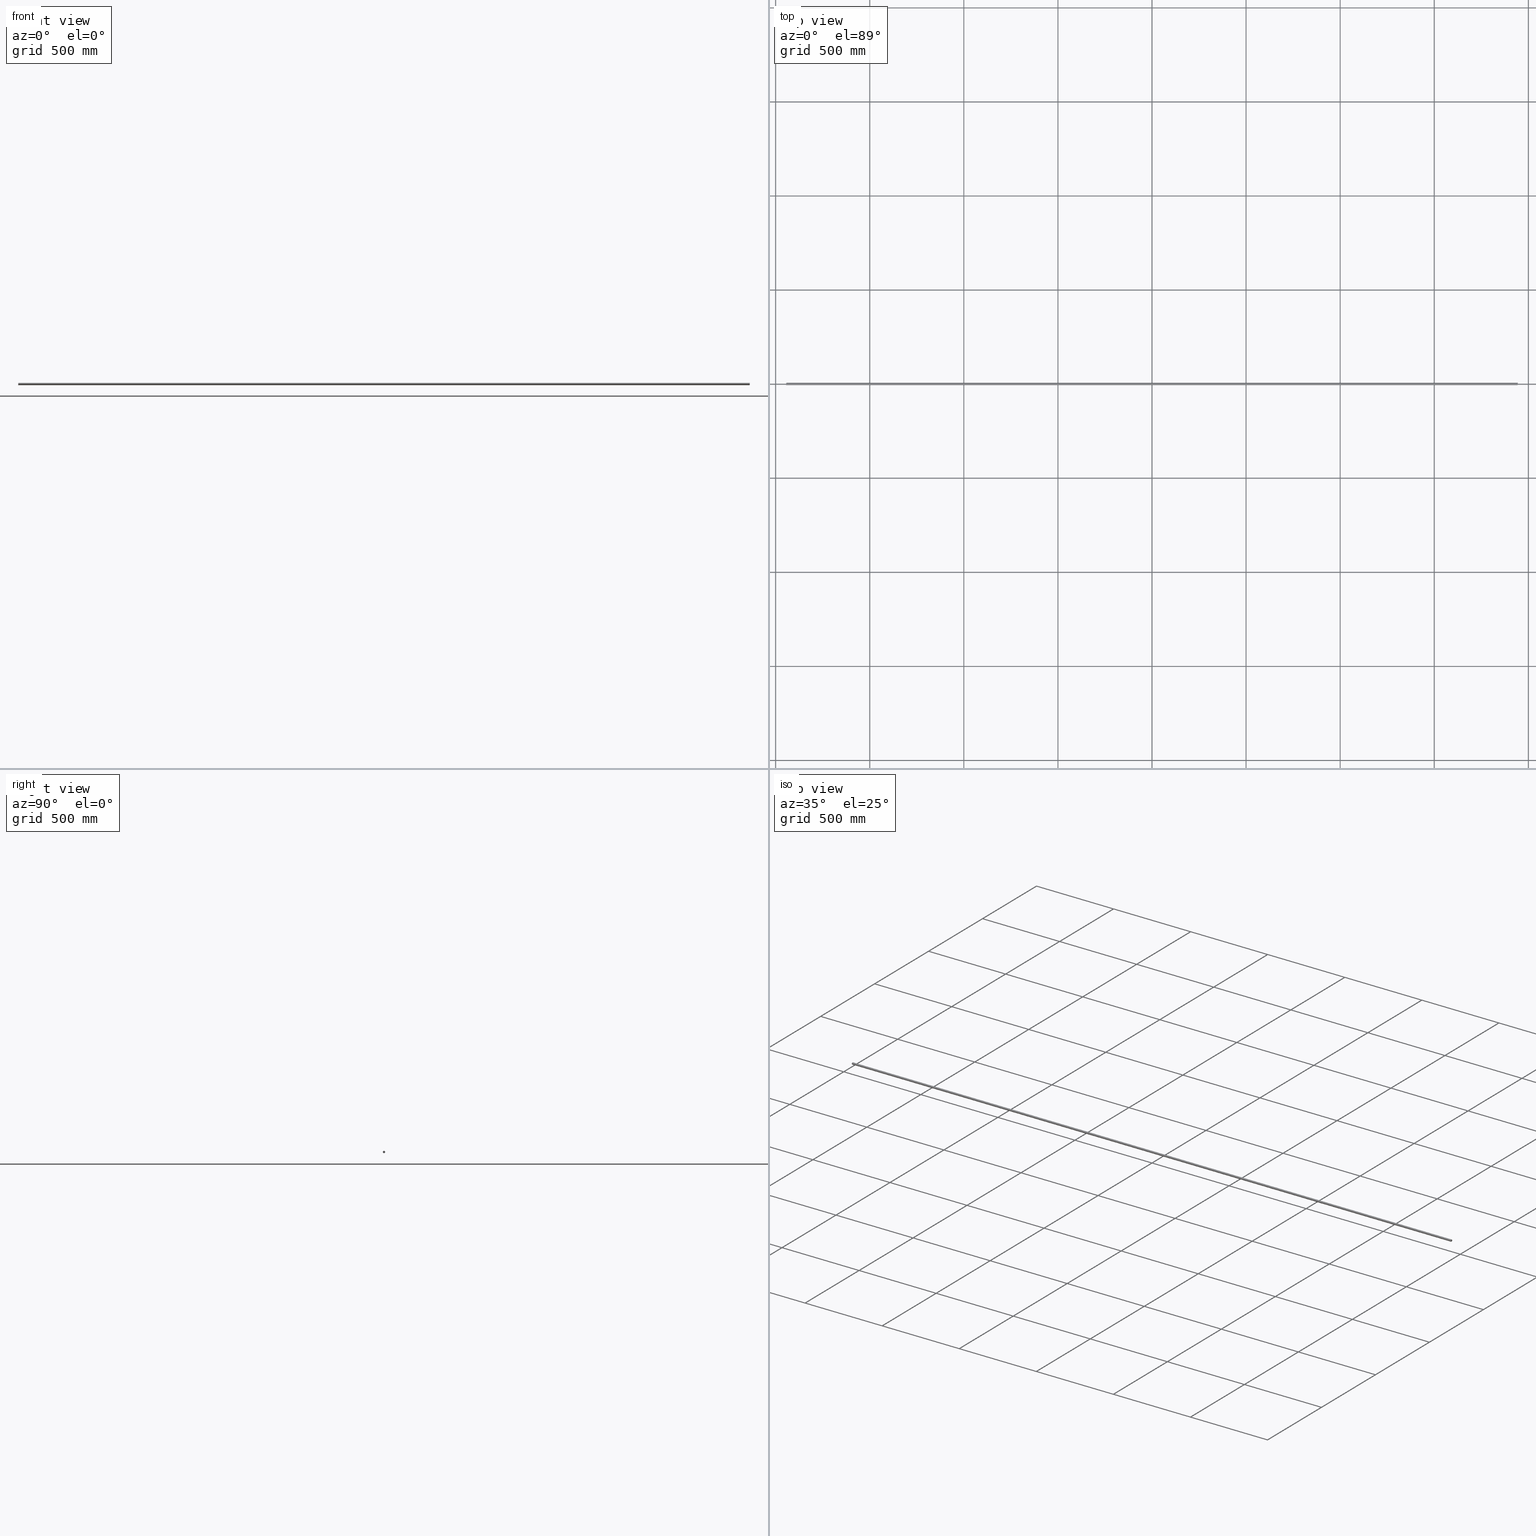
[diagram: canonical four-view strip — front | top / right | iso, engineering-drawing reading convention]
A machine part, canonical four-view strip (front | top / right | iso — engineering-drawing reading convention). The complete STEP part file that produces these views, byte-faithful:
ISO-10303-21;
HEADER;
FILE_DESCRIPTION (( 'STEP AP203' ),
    '1' );
FILE_NAME ('3982-38-10_REV_.step',
    '2026-02-01T20:36:12',
    ( '' ),
    ( '' ),
    'SwSTEP 2.0',
    'SolidWorks 2025',
    '' );
FILE_SCHEMA (( 'CONFIG_CONTROL_DESIGN' ));
ENDSEC;

DATA;
#1 = COORDINATED_UNIVERSAL_TIME_OFFSET ( 10, 0, .AHEAD. ) ;
#2 = AXIS2_PLACEMENT_3D ( 'NONE', #170, #78, #89 ) ;
#3 = DIRECTION ( 'NONE',  ( -1.000000000000000000, -1.836970198721029934E-16, -0.000000000000000000 ) ) ;
#4 = PRODUCT_RELATED_PRODUCT_CATEGORY ( 'detail', '', ( #13 ) ) ;
#5 = CARTESIAN_POINT ( 'NONE',  ( 1943.500000000000000, -5.999999999999286793, 0.000000000000000000 ) ) ;
#6 = CC_DESIGN_PERSON_AND_ORGANIZATION_ASSIGNMENT ( #175, #26, ( #154 ) ) ;
#7 = PLANE ( 'NONE',  #2 ) ;
#8 = DIRECTION ( 'NONE',  ( 0.000000000000000000, 1.000000000000000000, 0.000000000000000000 ) ) ;
#9 = CARTESIAN_POINT ( 'NONE',  ( 1943.500000000000000, 7.140303162428642532E-13, 0.000000000000000000 ) ) ;
#10 =( LENGTH_UNIT ( ) NAMED_UNIT ( * ) SI_UNIT ( .MILLI., .METRE. ) );
#11 = PRODUCT_DEFINITION_SHAPE ( 'NONE', 'NONE',  #154 ) ;
#12 = CIRCLE ( 'NONE', #112, 6.000000000000000888 ) ;
#13 = PRODUCT ( '3982-38-10_REV_', '3982-38-10_REV_', '', ( #171 ) ) ;
#14 = DESIGN_CONTEXT ( 'detailed design', #98, 'design' ) ;
#15 = EDGE_CURVE ( 'NONE', #44, #137, #128, .T. ) ;
#16 = ORIENTED_EDGE ( 'NONE', *, *, #122, .T. ) ;
#17 = EDGE_LOOP ( 'NONE', ( #152, #18, #163, #75 ) ) ;
#18 = ORIENTED_EDGE ( 'NONE', *, *, #100, .T. ) ;
#19 = DIRECTION ( 'NONE',  ( 1.000000000000000000, 1.836970198721029934E-16, 0.000000000000000000 ) ) ;
#20 = CARTESIAN_POINT ( 'NONE',  ( -1943.500000000000000, 0.000000000000000000, 0.000000000000000000 ) ) ;
#21 = APPROVAL_STATUS ( 'not_yet_approved' ) ;
#22 = ORGANIZATION ( 'UNSPECIFIED', 'UNSPECIFIED', '' ) ;
#23 = SECURITY_CLASSIFICATION_LEVEL ( 'unclassified' ) ;
#24 = APPROVAL_DATE_TIME ( #27, #45 ) ;
#25 = CC_DESIGN_APPROVAL ( #45, ( #88 ) ) ;
#26 = PERSON_AND_ORGANIZATION_ROLE ( 'creator' ) ;
#27 = DATE_AND_TIME ( #148, #141 ) ;
#28 = CC_DESIGN_PERSON_AND_ORGANIZATION_ASSIGNMENT ( #41, #81, ( #94 ) ) ;
#29 = ORIENTED_EDGE ( 'NONE', *, *, #127, .T. ) ;
#30 = EDGE_LOOP ( 'NONE', ( #126, #58 ) ) ;
#31 = EDGE_LOOP ( 'NONE', ( #16, #29 ) ) ;
#32 = ADVANCED_FACE ( 'NONE', ( #101 ), #73, .T. ) ;
#33 = CIRCLE ( 'NONE', #134, 6.000000000000000888 ) ;
#34 = EDGE_CURVE ( 'NONE', #137, #138, #165, .T. ) ;
#35 = LOCAL_TIME ( 7, 36, 12.00000000000000000, #1 ) ;
#36 = PERSON_AND_ORGANIZATION ( #46, #22 ) ;
#37 = DIRECTION ( 'NONE',  ( -1.000000000000000000, -1.836970198721029934E-16, -0.000000000000000000 ) ) ;
#38 = ADVANCED_FACE ( 'NONE', ( #119 ), #106, .T. ) ;
#39 = DIRECTION ( 'NONE',  ( -1.836970198721029934E-16, 1.000000000000000000, 0.000000000000000000 ) ) ;
#40 = CALENDAR_DATE ( 2026, 2, 2 ) ;
#41 = PERSON_AND_ORGANIZATION ( #46, #22 ) ;
#42 = CC_DESIGN_PERSON_AND_ORGANIZATION_ASSIGNMENT ( #159, #160, ( #88 ) ) ;
#43 = CC_DESIGN_APPROVAL ( #96, ( #94 ) ) ;
#44 = VERTEX_POINT ( 'NONE', #156 ) ;
#45 = APPROVAL ( #147, 'UNSPECIFIED' ) ;
#46 = PERSON ( 'UNSPECIFIED', 'UNSPECIFIED', 'UNSPECIFIED', ('UNSPECIFIED'), ('UNSPECIFIED'), ('UNSPECIFIED') ) ;
#47 = AXIS2_PLACEMENT_3D ( 'NONE', #132, #37, #129 ) ;
#48 = DIRECTION ( 'NONE',  ( 0.000000000000000000, 1.000000000000000000, 0.000000000000000000 ) ) ;
#49 = CC_DESIGN_PERSON_AND_ORGANIZATION_ASSIGNMENT ( #109, #107, ( #88 ) ) ;
#50 = CARTESIAN_POINT ( 'NONE',  ( 1943.500000000000000, 6.000000000000714984, 7.347880794884120722E-16 ) ) ;
#51 = CARTESIAN_POINT ( 'NONE',  ( -1943.500000000000000, -6.000000000000001776, 0.000000000000000000 ) ) ;
#52 = DATE_AND_TIME ( #56, #86 ) ;
#53 = COORDINATED_UNIVERSAL_TIME_OFFSET ( 10, 0, .AHEAD. ) ;
#54 = CC_DESIGN_PERSON_AND_ORGANIZATION_ASSIGNMENT ( #36, #91, ( #13 ) ) ;
#55 = PERSON_AND_ORGANIZATION ( #46, #22 ) ;
#56 = CALENDAR_DATE ( 2026, 2, 2 ) ;
#57 = AXIS2_PLACEMENT_3D ( 'NONE', #20, #105, #39 ) ;
#58 = ORIENTED_EDGE ( 'NONE', *, *, #140, .F. ) ;
#59 = ORIENTED_EDGE ( 'NONE', *, *, #100, .F. ) ;
#60 = DIRECTION ( 'NONE',  ( -1.000000000000000000, -1.836970198721029934E-16, -0.000000000000000000 ) ) ;
#61 =( GEOMETRIC_REPRESENTATION_CONTEXT ( 3 ) GLOBAL_UNCERTAINTY_ASSIGNED_CONTEXT ( ( #164 ) ) GLOBAL_UNIT_ASSIGNED_CONTEXT ( ( #10, #155, #139 ) ) REPRESENTATION_CONTEXT ( 'NONE', 'WORKASPACE' ) );
#62 = CARTESIAN_POINT ( 'NONE',  ( -1943.500000000000000, 6.000000000000000888, 7.347880794884120722E-16 ) ) ;
#63 = LINE ( 'NONE', #50, #146 ) ;
#64 = DIRECTION ( 'NONE',  ( 0.000000000000000000, 0.000000000000000000, 1.000000000000000000 ) ) ;
#65 = CC_DESIGN_DATE_AND_TIME_ASSIGNMENT ( #82, #133, ( #94 ) ) ;
#66 = LOCAL_TIME ( 7, 36, 12.00000000000000000, #83 ) ;
#67 = APPROVAL_ROLE ( '' ) ;
#68 = COORDINATED_UNIVERSAL_TIME_OFFSET ( 10, 0, .AHEAD. ) ;
#69 = CC_DESIGN_SECURITY_CLASSIFICATION ( #94, ( #88 ) ) ;
#70 = ADVANCED_BREP_SHAPE_REPRESENTATION ( '3982-38-10_REV_', ( #102, #72 ), #61 ) ;
#71 = CALENDAR_DATE ( 2026, 2, 2 ) ;
#72 = AXIS2_PLACEMENT_3D ( 'NONE', #92, #64, #142 ) ;
#73 = CYLINDRICAL_SURFACE ( 'NONE', #118, 6.000000000000000888 ) ;
#74 = APPROVAL ( #21, 'UNSPECIFIED' ) ;
#75 = ORIENTED_EDGE ( 'NONE', *, *, #15, .F. ) ;
#76 = CARTESIAN_POINT ( 'NONE',  ( -1943.500000000000000, 0.000000000000000000, 0.000000000000000000 ) ) ;
#77 = APPLICATION_PROTOCOL_DEFINITION ( 'international standard', 'config_control_design', 1994, #80 ) ;
#78 = DIRECTION ( 'NONE',  ( 1.000000000000000000, 1.836970198721029934E-16, 0.000000000000000000 ) ) ;
#79 = CARTESIAN_POINT ( 'NONE',  ( 1943.500000000000000, 7.140303162428642532E-13, 0.000000000000000000 ) ) ;
#80 = APPLICATION_CONTEXT ( 'configuration controlled 3d designs of mechanical parts and assemblies' ) ;
#81 = PERSON_AND_ORGANIZATION_ROLE ( 'classification_officer' ) ;
#82 = DATE_AND_TIME ( #40, #66 ) ;
#83 = COORDINATED_UNIVERSAL_TIME_OFFSET ( 10, 0, .AHEAD. ) ;
#84 = AXIS2_PLACEMENT_3D ( 'NONE', #9, #19, #104 ) ;
#85 = DATE_TIME_ROLE ( 'creation_date' ) ;
#86 = LOCAL_TIME ( 7, 36, 12.00000000000000000, #68 ) ;
#87 = FACE_OUTER_BOUND ( 'NONE', #30, .T. ) ;
#88 = PRODUCT_DEFINITION_FORMATION_WITH_SPECIFIED_SOURCE ( 'ANY', '', #13, .NOT_KNOWN. ) ;
#89 = DIRECTION ( 'NONE',  ( -1.836970198721029934E-16, 1.000000000000000000, 0.000000000000000000 ) ) ;
#90 = ADVANCED_FACE ( 'NONE', ( #114 ), #7, .T. ) ;
#91 = PERSON_AND_ORGANIZATION_ROLE ( 'design_owner' ) ;
#92 = CARTESIAN_POINT ( 'NONE',  ( 0.000000000000000000, 0.000000000000000000, 0.000000000000000000 ) ) ;
#93 = CIRCLE ( 'NONE', #84, 6.000000000000000888 ) ;
#94 = SECURITY_CLASSIFICATION ( '', '', #23 ) ;
#95 = SHAPE_DEFINITION_REPRESENTATION ( #11, #70 ) ;
#96 = APPROVAL ( #135, 'UNSPECIFIED' ) ;
#97 = VECTOR ( 'NONE', #168, 1000.000000000000000 ) ;
#98 = APPLICATION_CONTEXT ( 'configuration controlled 3d designs of mechanical parts and assemblies' ) ;
#99 = ORIENTED_EDGE ( 'NONE', *, *, #15, .T. ) ;
#100 = EDGE_CURVE ( 'NONE', #153, #138, #63, .T. ) ;
#101 = FACE_OUTER_BOUND ( 'NONE', #17, .T. ) ;
#102 = MANIFOLD_SOLID_BREP ( 'Rod 12 ROD(1)', #173 ) ;
#103 = DIRECTION ( 'NONE',  ( 1.000000000000000000, 1.836970198721029934E-16, 0.000000000000000000 ) ) ;
#104 = DIRECTION ( 'NONE',  ( 0.000000000000000000, 1.000000000000000000, 0.000000000000000000 ) ) ;
#105 = DIRECTION ( 'NONE',  ( 1.000000000000000000, 1.836970198721029934E-16, 0.000000000000000000 ) ) ;
#106 = CYLINDRICAL_SURFACE ( 'NONE', #47, 6.000000000000000888 ) ;
#107 = PERSON_AND_ORGANIZATION_ROLE ( 'creator' ) ;
#108 = APPROVAL_PERSON_ORGANIZATION ( #131, #74, #145 ) ;
#109 = PERSON_AND_ORGANIZATION ( #46, #22 ) ;
#110 = PERSON_AND_ORGANIZATION ( #46, #22 ) ;
#111 = DATE_AND_TIME ( #123, #35 ) ;
#112 = AXIS2_PLACEMENT_3D ( 'NONE', #79, #103, #8 ) ;
#113 = EDGE_LOOP ( 'NONE', ( #59, #167, #99, #166 ) ) ;
#114 = FACE_OUTER_BOUND ( 'NONE', #31, .T. ) ;
#115 = CARTESIAN_POINT ( 'NONE',  ( 1943.500000000000000, 6.000000000000714984, 7.347880794884557554E-16 ) ) ;
#116 = CARTESIAN_POINT ( 'NONE',  ( -1943.500000000000000, 0.000000000000000000, 0.000000000000000000 ) ) ;
#117 = DIRECTION ( 'NONE',  ( 1.000000000000000000, 1.836970198721029934E-16, 0.000000000000000000 ) ) ;
#118 = AXIS2_PLACEMENT_3D ( 'NONE', #125, #3, #174 ) ;
#119 = FACE_OUTER_BOUND ( 'NONE', #113, .T. ) ;
#120 = APPROVAL_DATE_TIME ( #111, #74 ) ;
#121 = LOCAL_TIME ( 7, 36, 12.00000000000000000, #136 ) ;
#122 = EDGE_CURVE ( 'NONE', #44, #153, #12, .T. ) ;
#123 = CALENDAR_DATE ( 2026, 2, 2 ) ;
#124 = AXIS2_PLACEMENT_3D ( 'NONE', #76, #117, #130 ) ;
#125 = CARTESIAN_POINT ( 'NONE',  ( 1943.500000000000000, 7.140303162428642532E-13, 0.000000000000000000 ) ) ;
#126 = ORIENTED_EDGE ( 'NONE', *, *, #34, .F. ) ;
#127 = EDGE_CURVE ( 'NONE', #153, #44, #93, .T. ) ;
#128 = LINE ( 'NONE', #5, #97 ) ;
#129 = DIRECTION ( 'NONE',  ( 0.000000000000000000, -1.000000000000000000, 0.000000000000000000 ) ) ;
#130 = DIRECTION ( 'NONE',  ( 0.000000000000000000, 1.000000000000000000, 0.000000000000000000 ) ) ;
#131 = PERSON_AND_ORGANIZATION ( #46, #22 ) ;
#132 = CARTESIAN_POINT ( 'NONE',  ( 1943.500000000000000, 7.140303162428642532E-13, 0.000000000000000000 ) ) ;
#133 = DATE_TIME_ROLE ( 'classification_date' ) ;
#134 = AXIS2_PLACEMENT_3D ( 'NONE', #116, #172, #48 ) ;
#135 = APPROVAL_STATUS ( 'not_yet_approved' ) ;
#136 = COORDINATED_UNIVERSAL_TIME_OFFSET ( 10, 0, .AHEAD. ) ;
#137 = VERTEX_POINT ( 'NONE', #51 ) ;
#138 = VERTEX_POINT ( 'NONE', #62 ) ;
#139 =( NAMED_UNIT ( * ) SI_UNIT ( $, .STERADIAN. ) SOLID_ANGLE_UNIT ( ) );
#140 = EDGE_CURVE ( 'NONE', #138, #137, #33, .T. ) ;
#141 = LOCAL_TIME ( 7, 36, 12.00000000000000000, #53 ) ;
#142 = DIRECTION ( 'NONE',  ( 1.000000000000000000, 0.000000000000000000, 0.000000000000000000 ) ) ;
#143 = APPLICATION_PROTOCOL_DEFINITION ( 'international standard', 'config_control_design', 1994, #98 ) ;
#144 = CC_DESIGN_DATE_AND_TIME_ASSIGNMENT ( #52, #85, ( #154 ) ) ;
#145 = APPROVAL_ROLE ( '' ) ;
#146 = VECTOR ( 'NONE', #60, 1000.000000000000000 ) ;
#147 = APPROVAL_STATUS ( 'not_yet_approved' ) ;
#148 = CALENDAR_DATE ( 2026, 2, 2 ) ;
#149 = APPROVAL_DATE_TIME ( #161, #96 ) ;
#150 = APPROVAL_PERSON_ORGANIZATION ( #110, #96, #162 ) ;
#151 = ADVANCED_FACE ( 'NONE', ( #87 ), #157, .F. ) ;
#152 = ORIENTED_EDGE ( 'NONE', *, *, #127, .F. ) ;
#153 = VERTEX_POINT ( 'NONE', #115 ) ;
#154 = PRODUCT_DEFINITION ( 'UNKNOWN', '', #88, #14 ) ;
#155 =( NAMED_UNIT ( * ) PLANE_ANGLE_UNIT ( ) SI_UNIT ( $, .RADIAN. ) );
#156 = CARTESIAN_POINT ( 'NONE',  ( 1943.500000000000000, -5.999999999999286793, 0.000000000000000000 ) ) ;
#157 = PLANE ( 'NONE',  #57 ) ;
#158 = APPROVAL_PERSON_ORGANIZATION ( #55, #45, #67 ) ;
#159 = PERSON_AND_ORGANIZATION ( #46, #22 ) ;
#160 = PERSON_AND_ORGANIZATION_ROLE ( 'design_supplier' ) ;
#161 = DATE_AND_TIME ( #71, #121 ) ;
#162 = APPROVAL_ROLE ( '' ) ;
#163 = ORIENTED_EDGE ( 'NONE', *, *, #140, .T. ) ;
#164 = UNCERTAINTY_MEASURE_WITH_UNIT (LENGTH_MEASURE( 1.000000000000000082E-05 ), #10, 'distance_accuracy_value', 'NONE');
#165 = CIRCLE ( 'NONE', #124, 6.000000000000000888 ) ;
#166 = ORIENTED_EDGE ( 'NONE', *, *, #34, .T. ) ;
#167 = ORIENTED_EDGE ( 'NONE', *, *, #122, .F. ) ;
#168 = DIRECTION ( 'NONE',  ( -1.000000000000000000, -1.836970198721029934E-16, -0.000000000000000000 ) ) ;
#169 = CC_DESIGN_APPROVAL ( #74, ( #154 ) ) ;
#170 = CARTESIAN_POINT ( 'NONE',  ( 1943.500000000000000, 7.140303162428642532E-13, 0.000000000000000000 ) ) ;
#171 = MECHANICAL_CONTEXT ( 'NONE', #80, 'mechanical' ) ;
#172 = DIRECTION ( 'NONE',  ( 1.000000000000000000, 1.836970198721029934E-16, 0.000000000000000000 ) ) ;
#173 = CLOSED_SHELL ( 'NONE', ( #32, #38, #90, #151 ) ) ;
#174 = DIRECTION ( 'NONE',  ( 0.000000000000000000, -1.000000000000000000, 0.000000000000000000 ) ) ;
#175 = PERSON_AND_ORGANIZATION ( #46, #22 ) ;
ENDSEC;
END-ISO-10303-21;
